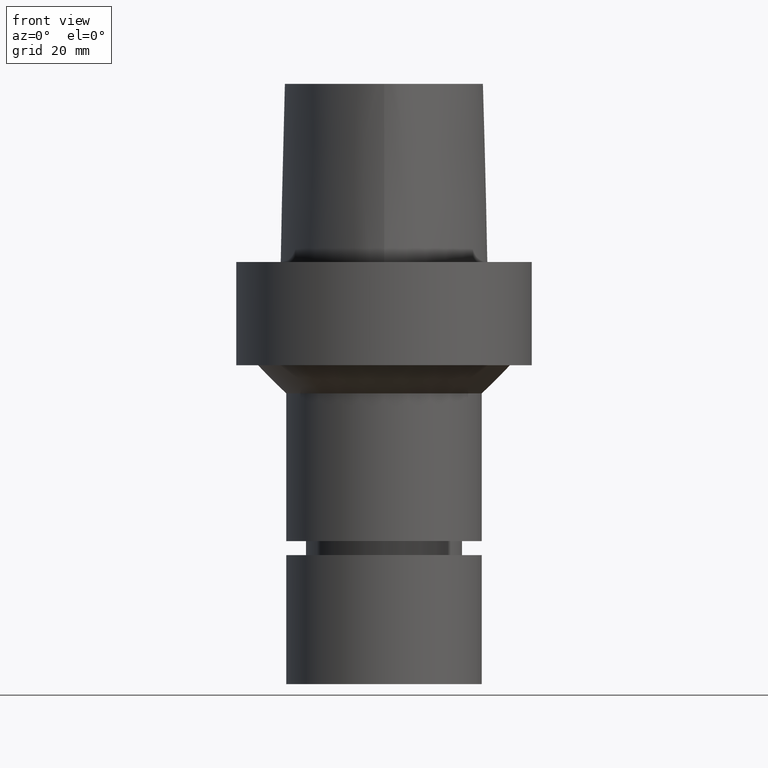
[diagram: clean part render]
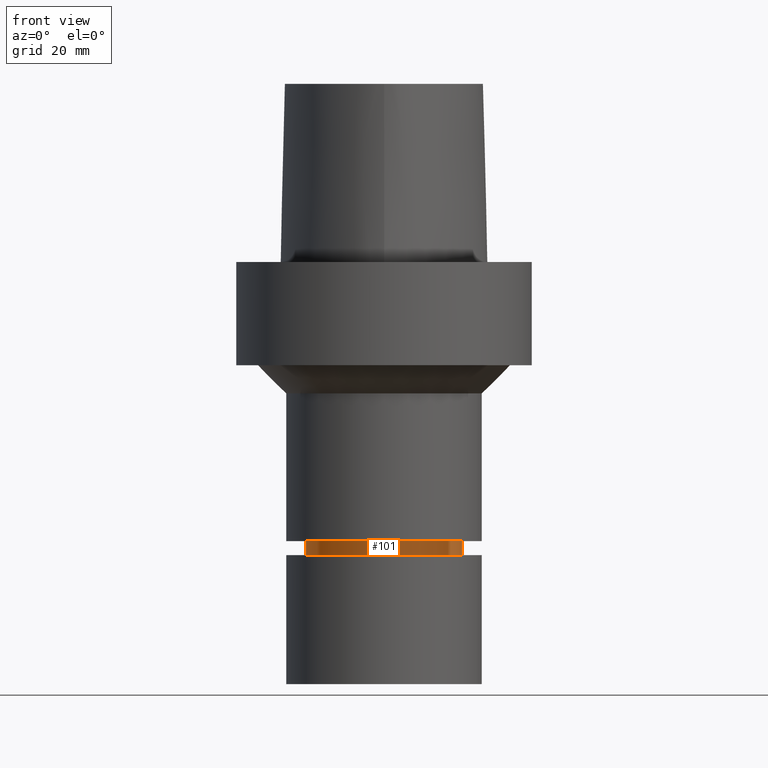
[diagram: same view with one face highlighted and labeled with its STEP entity id]
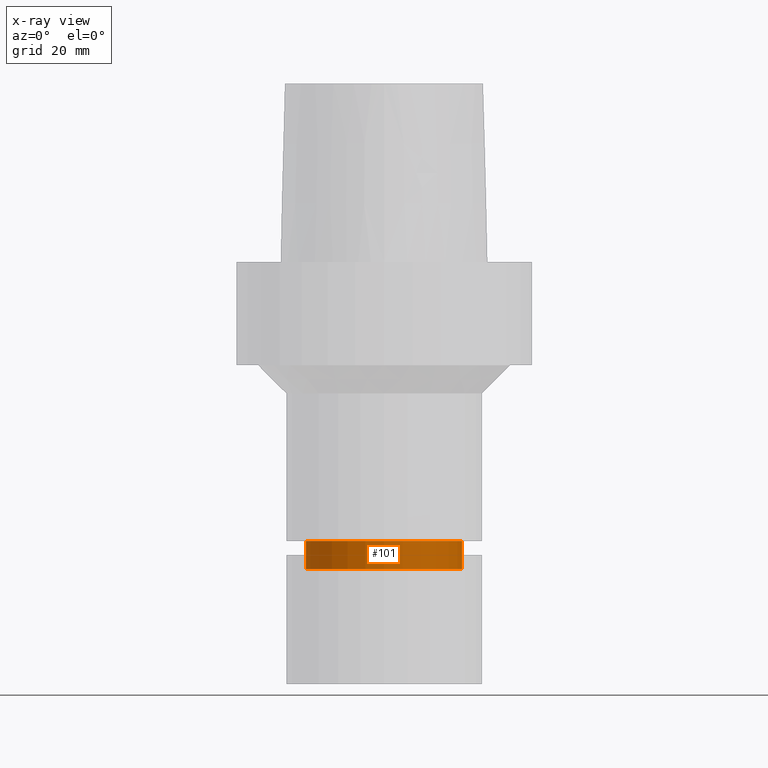
[diagram: x-ray of the same camera — body ghosted, the highlighted face saturated]
A machine part, front view. The second image highlights one B-rep face of the part: STEP entity #101.
The next image is the same camera in x-ray: the body ghosted, the highlighted face saturated — about 0% of this face is hidden behind the body in this view.
In plain terms, the highlighted cylindrical surface (bore or boss wall) has radius 16.75 mm, axis along (0, 0, -1).
Its self-contained STEP definition (entity closure, byte-faithful):
#86=EDGE_CURVE('Unnamed[1]',#212,#212,#213,.T.);
#101=ADVANCED_FACE('Unnamed[1]',(#234,#235),#236,.T.);
#111=EDGE_CURVE('Unnamed[1]',#250,#250,#251,.T.);
#212=VERTEX_POINT('',#461);
#213=CIRCLE('',#462,16.7499999999907);
#234=FACE_BOUND('',#572,.T.);
#235=FACE_BOUND('',#573,.T.);
#236=CYLINDRICAL_SURFACE('',#574,16.7499999999962);
#250=VERTEX_POINT('',#593);
#251=CIRCLE('',#594,16.7500000000017);
#461=CARTESIAN_POINT('',(3.64332422746333E-015,16.7499999999907,-59.4999999999992));
#462=AXIS2_PLACEMENT_3D('',#758,#759,#760);
#572=EDGE_LOOP('',(#778));
#573=EDGE_LOOP('',(#779));
#574=AXIS2_PLACEMENT_3D('',#780,#781,#782);
#593=CARTESIAN_POINT('',(4.00871749225766E-015,16.7500000000017,-65.4673248654009));
#594=AXIS2_PLACEMENT_3D('',#796,#797,#798);
#758=CARTESIAN_POINT('',(3.64332422746333E-015,7.28664845492665E-015,-59.4999999999992));
#759=DIRECTION('',(6.12323399573677E-017,1.22464679914735E-016,-1.0));
#760=DIRECTION('',(-1.23259516440783E-032,1.0,1.22464679914735E-016));
#778=ORIENTED_EDGE('',*,*,#111,.F.);
#779=ORIENTED_EDGE('',*,*,#86,.T.);
#780=CARTESIAN_POINT('',(3.82602085986049E-015,7.65204171972099E-015,-62.4836624327001));
#781=DIRECTION('',(6.12323399573677E-017,1.22464679914735E-016,-1.0));
#782=DIRECTION('',(-1.23259516440783E-032,1.0,1.22464679914735E-016));
#796=CARTESIAN_POINT('',(4.00871749225766E-015,8.01743498451531E-015,-65.4673248654009));
#797=DIRECTION('',(6.12323399573676E-017,1.22464679914735E-016,-1.0));
#798=DIRECTION('',(-1.23259516440783E-032,1.0,1.22464679914735E-016));